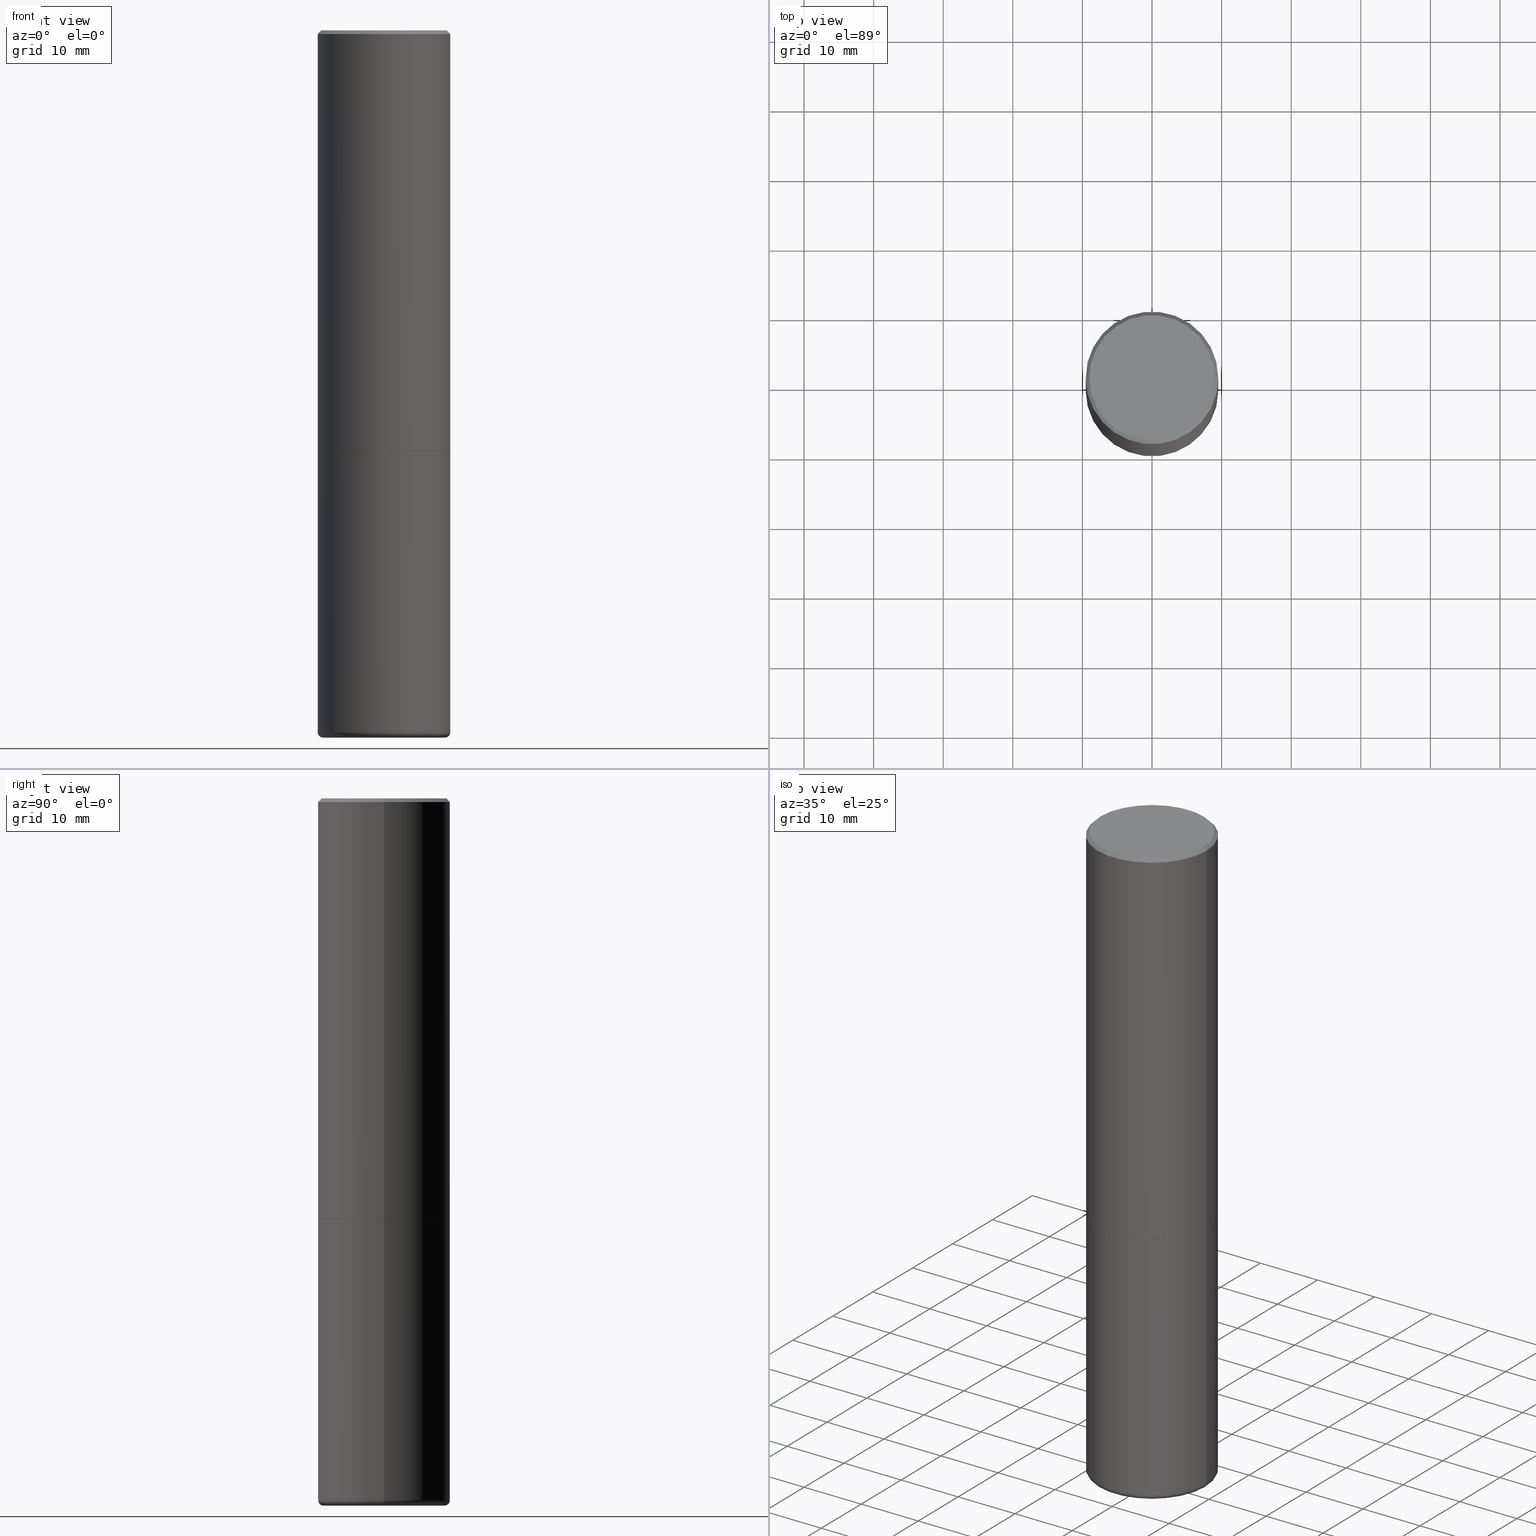
[diagram: canonical four-view strip — front | top / right | iso, engineering-drawing reading convention]
A machine part, canonical four-view strip (front | top / right | iso — engineering-drawing reading convention). The complete STEP part file that produces these views, byte-faithful:
ISO-10303-21;
HEADER;
FILE_DESCRIPTION (( 'STEP AP203' ),
    '1' );
FILE_NAME ('34308.STEP',
    '2022-11-02T20:15:25',
    ( '' ),
    ( '' ),
    'SwSTEP 2.0',
    'SolidWorks 2022',
    '' );
FILE_SCHEMA (( 'CONFIG_CONTROL_DESIGN' ));
ENDSEC;

DATA;
#1 = LINE ( 'NONE', #32, #402 ) ;
#2 = CARTESIAN_POINT ( 'NONE',  ( 9.781021626775434250E-29, -1.396470664370530441E-14, -3.999650947105539256 ) ) ;
#3 = COORDINATED_UNIVERSAL_TIME_OFFSET ( 5, 0, .BEHIND. ) ;
#4 = EDGE_LOOP ( 'NONE', ( #45, #288, #369, #331 ) ) ;
#5 = DATE_AND_TIME ( #43, #154 ) ;
#6 = CIRCLE ( 'NONE', #65, 0.3047407039350492619 ) ;
#7 = CC_DESIGN_PERSON_AND_ORGANIZATION_ASSIGNMENT ( #312, #462, ( #334 ) ) ;
#8 = CARTESIAN_POINT ( 'NONE',  ( -0.3749999999999993339, 2.548781377355482380E-15, -0.02000000000000018777 ) ) ;
#9 = APPROVAL_DATE_TIME ( #252, #461 ) ;
#10 = DIRECTION ( 'NONE',  ( -2.445468806185136597E-29, 3.491481338843145583E-15, 1.000000000000000000 ) ) ;
#11 = DIRECTION ( 'NONE',  ( -1.000000000000000000, 6.982962677686265133E-15, 0.000000000000000000 ) ) ;
#12 = CARTESIAN_POINT ( 'NONE',  ( 0.000000000000000000, 0.000000000000000000, 0.000000000000000000 ) ) ;
#13 = ORIENTED_EDGE ( 'NONE', *, *, #246, .F. ) ;
#14 = AXIS2_PLACEMENT_3D ( 'NONE', #422, #39, #49 ) ;
#15 = APPLICATION_PROTOCOL_DEFINITION ( 'international standard', 'config_control_design', 1994, #382 ) ;
#16 = DIRECTION ( 'NONE',  ( 1.000000000000000000, -6.982962677686268288E-15, 0.000000000000000000 ) ) ;
#17 = DIRECTION ( 'NONE',  ( 1.000000000000000000, -6.982962677686265133E-15, 0.000000000000000000 ) ) ;
#18 = SHAPE_DEFINITION_REPRESENTATION ( #478, #205 ) ;
#19 = CARTESIAN_POINT ( 'NONE',  ( -1.043851414335219820E-46, 1.490343170380447200E-32, 4.268512490100411279E-18 ) ) ;
#20 = CARTESIAN_POINT ( 'NONE',  ( -0.3739999999999995550, -5.629539893661476182E-15, -2.375000000000000000 ) ) ;
#21 = EDGE_CURVE ( 'NONE', #475, #142, #248, .T. ) ;
#22 = ORIENTED_EDGE ( 'NONE', *, *, #470, .F. ) ;
#23 = CIRCLE ( 'NONE', #227, 0.02999999999999947500 ) ;
#24 = ORIENTED_EDGE ( 'NONE', *, *, #294, .F. ) ;
#25 = CARTESIAN_POINT ( 'NONE',  ( 0.3749999999999995559, -1.090738770254597397E-14, -2.373999999999999666 ) ) ;
#26 = ORIENTED_EDGE ( 'NONE', *, *, #374, .F. ) ;
#27 = ORIENTED_EDGE ( 'NONE', *, *, #335, .F. ) ;
#28 = ORIENTED_EDGE ( 'NONE', *, *, #391, .F. ) ;
#29 = DATE_AND_TIME ( #290, #394 ) ;
#30 = ORIENTED_EDGE ( 'NONE', *, *, #110, .F. ) ;
#31 = LINE ( 'NONE', #121, #464 ) ;
#32 = CARTESIAN_POINT ( 'NONE',  ( -0.3749999999999993894, 2.664535259100371358E-15, -1.844600658845586515E-29 ) ) ;
#33 = EDGE_CURVE ( 'NONE', #211, #398, #271, .T. ) ;
#34 = ORIENTED_EDGE ( 'NONE', *, *, #231, .T. ) ;
#35 = VECTOR ( 'NONE', #145, 39.37007874015748143 ) ;
#36 = VECTOR ( 'NONE', #210, 39.37007874015748854 ) ;
#37 = CYLINDRICAL_SURFACE ( 'NONE', #202, 0.3749999999999993894 ) ;
#38 = LOCAL_TIME ( 16, 15, 25.00000000000000000, #204 ) ;
#39 = DIRECTION ( 'NONE',  ( -2.445468806185136597E-29, 3.491481338843145583E-15, 1.000000000000000000 ) ) ;
#40 = CARTESIAN_POINT ( 'NONE',  ( -0.3447382039350492255, -1.135653136718824702E-14, -3.999999999999999556 ) ) ;
#41 = ADVANCED_FACE ( 'NONE', ( #220 ), #193, .F. ) ;
#42 = CARTESIAN_POINT ( 'NONE',  ( 9.781875224740545266E-29, -1.396592535537258075E-14, -3.999999999999999556 ) ) ;
#43 = CALENDAR_DATE ( 2022, 2, 11 ) ;
#44 = CIRCLE ( 'NONE', #364, 0.3749999999999993339 ) ;
#45 = ORIENTED_EDGE ( 'NONE', *, *, #246, .T. ) ;
#46 = FACE_OUTER_BOUND ( 'NONE', #116, .T. ) ;
#47 = CALENDAR_DATE ( 2022, 2, 11 ) ;
#48 = EDGE_CURVE ( 'NONE', #256, #142, #184, .T. ) ;
#49 = DIRECTION ( 'NONE',  ( 1.000000000000000000, -6.982962677686268288E-15, 0.000000000000000000 ) ) ;
#50 = DATE_AND_TIME ( #47, #72 ) ;
#51 = CIRCLE ( 'NONE', #281, 0.3749999999999995559 ) ;
#52 = DIRECTION ( 'NONE',  ( 1.000000000000000000, -6.982962677686268288E-15, 0.000000000000000000 ) ) ;
#53 = CALENDAR_DATE ( 2022, 2, 11 ) ;
#54 = CARTESIAN_POINT ( 'NONE',  ( -1.043851414335219820E-46, 1.490343170380447200E-32, 4.268512490100411279E-18 ) ) ;
#55 = DIRECTION ( 'NONE',  ( 1.000000000000000000, -6.982962677686265133E-15, 0.000000000000000000 ) ) ;
#56 = PERSON_AND_ORGANIZATION ( #130, #129 ) ;
#57 = DIRECTION ( 'NONE',  ( 1.000000000000000000, -6.982962677686268288E-15, 0.000000000000000000 ) ) ;
#58 = AXIS2_PLACEMENT_3D ( 'NONE', #345, #458, #258 ) ;
#59 = ORIENTED_EDGE ( 'NONE', *, *, #335, .T. ) ;
#60 = EDGE_LOOP ( 'NONE', ( #411, #284, #179, #99 ) ) ;
#61 = CARTESIAN_POINT ( 'NONE',  ( 5.805542945883513814E-29, -8.288776698413627111E-15, -2.373999999999999666 ) ) ;
#62 = ORIENTED_EDGE ( 'NONE', *, *, #413, .F. ) ;
#63 = ORIENTED_EDGE ( 'NONE', *, *, #80, .F. ) ;
#64 = SECURITY_CLASSIFICATION_LEVEL ( 'unclassified' ) ;
#65 = AXIS2_PLACEMENT_3D ( 'NONE', #187, #465, #157 ) ;
#66 = ORIENTED_EDGE ( 'NONE', *, *, #118, .F. ) ;
#67 = APPROVAL_PERSON_ORGANIZATION ( #309, #192, #270 ) ;
#68 = DIRECTION ( 'NONE',  ( -2.445468806185136877E-29, 3.491481338843145188E-15, 1.000000000000000000 ) ) ;
#69 = VECTOR ( 'NONE', #175, 39.37007874015748143 ) ;
#70 = DIRECTION ( 'NONE',  ( -1.000000000000000000, 6.982962677686265922E-15, -4.876176775795935793E-29 ) ) ;
#71 = FACE_OUTER_BOUND ( 'NONE', #250, .T. ) ;
#72 = LOCAL_TIME ( 16, 15, 25.00000000000000000, #437 ) ;
#73 = DIRECTION ( 'NONE',  ( -2.445468806185136597E-29, 3.491481338843145583E-15, 1.000000000000000000 ) ) ;
#74 = DIRECTION ( 'NONE',  ( -2.445468806185136597E-29, 3.491481338843145583E-15, 1.000000000000000000 ) ) ;
#75 = DIRECTION ( 'NONE',  ( 1.000000000000000000, -6.982962677686268288E-15, 0.000000000000000000 ) ) ;
#76 = MANIFOLD_SOLID_BREP ( 'Body-Move/Copy2[1]', #337 ) ;
#77 = DIRECTION ( 'NONE',  ( -1.000000000000000000, 6.982962677686265133E-15, 0.000000000000000000 ) ) ;
#78 = DIRECTION ( 'NONE',  ( 1.000000000000000000, -6.982962677686265922E-15, 4.876176775795935793E-29 ) ) ;
#79 = CIRCLE ( 'NONE', #208, 0.3447382039350492255 ) ;
#80 = EDGE_CURVE ( 'NONE', #183, #215, #313, .T. ) ;
#81 = DIRECTION ( 'NONE',  ( -2.445468806185136597E-29, 3.491481338843145583E-15, 1.000000000000000000 ) ) ;
#82 = APPROVAL_PERSON_ORGANIZATION ( #471, #461, #279 ) ;
#83 = LINE ( 'NONE', #295, #316 ) ;
#84 = ORIENTED_EDGE ( 'NONE', *, *, #100, .F. ) ;
#85 = CARTESIAN_POINT ( 'NONE',  ( 0.000000000000000000, 0.000000000000000000, 0.000000000000000000 ) ) ;
#86 = CARTESIAN_POINT ( 'NONE',  ( 0.3447382039350492255, -1.633100111322433910E-14, -3.999999999999999556 ) ) ;
#87 = MECHANICAL_CONTEXT ( 'NONE', #362, 'mechanical' ) ;
#88 = FACE_OUTER_BOUND ( 'NONE', #370, .T. ) ;
#89 = EDGE_CURVE ( 'NONE', #298, #211, #31, .T. ) ;
#90 = AXIS2_PLACEMENT_3D ( 'NONE', #173, #166, #57 ) ;
#91 = CARTESIAN_POINT ( 'NONE',  ( 9.708513954033757613E-29, -1.386118490355461518E-14, -3.970001142308074993 ) ) ;
#92 = CC_DESIGN_PERSON_AND_ORGANIZATION_ASSIGNMENT ( #456, #108, ( #448 ) ) ;
#93 = APPROVAL_DATE_TIME ( #50, #338 ) ;
#94 = ORIENTED_EDGE ( 'NONE', *, *, #287, .F. ) ;
#95 = AXIS2_PLACEMENT_3D ( 'NONE', #189, #397, #267 ) ;
#96 = EDGE_CURVE ( 'NONE', #219, #398, #181, .T. ) ;
#97 = EDGE_LOOP ( 'NONE', ( #103, #336 ) ) ;
#98 = ORIENTED_EDGE ( 'NONE', *, *, #21, .F. ) ;
#99 = ORIENTED_EDGE ( 'NONE', *, *, #225, .F. ) ;
#100 = EDGE_CURVE ( 'NONE', #351, #174, #83, .T. ) ;
#101 = PLANE ( 'NONE',  #340 ) ;
#102 = COORDINATED_UNIVERSAL_TIME_OFFSET ( 5, 0, .BEHIND. ) ;
#103 = ORIENTED_EDGE ( 'NONE', *, *, #492, .T. ) ;
#104 = CARTESIAN_POINT ( 'NONE',  ( 5.807988414689699417E-29, -8.292268179752470118E-15, -2.375000000000000000 ) ) ;
#105 = AXIS2_PLACEMENT_3D ( 'NONE', #12, #350, #310 ) ;
#106 = FACE_OUTER_BOUND ( 'NONE', #480, .T. ) ;
#107 = CARTESIAN_POINT ( 'NONE',  ( 5.807988414689699417E-29, -8.292268179752470118E-15, -2.375000000000000000 ) ) ;
#108 = PERSON_AND_ORGANIZATION_ROLE ( 'creator' ) ;
#109 = CARTESIAN_POINT ( 'NONE',  ( 0.3447382039350492255, -1.637321936702362776E-14, -3.999999999999999556 ) ) ;
#110 = EDGE_CURVE ( 'NONE', #148, #445, #167, .T. ) ;
#111 = CIRCLE ( 'NONE', #436, 0.3749999999999995559 ) ;
#112 = DIRECTION ( 'NONE',  ( 1.000000000000000000, -6.982962677686267499E-15, 0.000000000000000000 ) ) ;
#113 = CC_DESIGN_APPROVAL ( #338, ( #308 ) ) ;
#114 = FACE_OUTER_BOUND ( 'NONE', #139, .T. ) ;
#115 = CARTESIAN_POINT ( 'NONE',  ( 9.754251709572808210E-29, -1.392861906220722304E-14, -3.989009167228670272 ) ) ;
#116 = EDGE_LOOP ( 'NONE', ( #27, #477, #66 ) ) ;
#117 = DIRECTION ( 'NONE',  ( -2.445468806185136597E-29, 3.491481338843145583E-15, 1.000000000000000000 ) ) ;
#118 = EDGE_CURVE ( 'NONE', #148, #183, #124, .T. ) ;
#119 = APPROVAL_STATUS ( 'not_yet_approved' ) ;
#120 = DIRECTION ( 'NONE',  ( -2.445468806185136597E-29, 3.491481338843145583E-15, 1.000000000000000000 ) ) ;
#121 = CARTESIAN_POINT ( 'NONE',  ( 0.3749999999999993894, -2.618611004132345678E-15, 1.828566290923473120E-29 ) ) ;
#122 = VERTEX_POINT ( 'NONE', #171 ) ;
#123 = DIRECTION ( 'NONE',  ( 2.445468806185136597E-29, -3.491481338843145583E-15, -1.000000000000000000 ) ) ;
#124 = CIRCLE ( 'NONE', #286, 0.3047407039350492619 ) ;
#125 = ORIENTED_EDGE ( 'NONE', *, *, #48, .T. ) ;
#126 = DIRECTION ( 'NONE',  ( 1.000000000000000000, -6.982962677686268288E-15, 0.000000000000000000 ) ) ;
#127 = APPROVAL_STATUS ( 'not_yet_approved' ) ;
#128 = DIRECTION ( 'NONE',  ( -2.445468806185136597E-29, 3.491481338843145583E-15, 1.000000000000000000 ) ) ;
#129 = ORGANIZATION ( 'UNSPECIFIED', 'UNSPECIFIED', '' ) ;
#130 = PERSON ( 'UNSPECIFIED', 'UNSPECIFIED', 'UNSPECIFIED', ('UNSPECIFIED'), ('UNSPECIFIED'), ('UNSPECIFIED') ) ;
#131 = CYLINDRICAL_SURFACE ( 'NONE', #177, 0.3749999999999995004 ) ;
#132 = EDGE_LOOP ( 'NONE', ( #34, #125 ) ) ;
#133 = EDGE_LOOP ( 'NONE', ( #172, #277, #373, #490 ) ) ;
#134 = EDGE_CURVE ( 'NONE', #445, #215, #79, .T. ) ;
#135 = DIRECTION ( 'NONE',  ( -2.445468806185136597E-29, 3.491481338843145583E-15, 1.000000000000000000 ) ) ;
#136 = ORIENTED_EDGE ( 'NONE', *, *, #391, .T. ) ;
#137 = AXIS2_PLACEMENT_3D ( 'NONE', #303, #387, #70 ) ;
#138 = AXIS2_PLACEMENT_3D ( 'NONE', #150, #451, #304 ) ;
#139 = EDGE_LOOP ( 'NONE', ( #347, #59, #26 ) ) ;
#140 = DIRECTION ( 'NONE',  ( -2.445468806185136877E-29, 3.491481338843145188E-15, 1.000000000000000000 ) ) ;
#141 = LINE ( 'NONE', #377, #357 ) ;
#142 = VERTEX_POINT ( 'NONE', #322 ) ;
#143 = DIRECTION ( 'NONE',  ( 1.000000000000000000, -6.982962677686266711E-15, 4.876176775795936353E-29 ) ) ;
#144 = VERTEX_POINT ( 'NONE', #441 ) ;
#145 = DIRECTION ( 'NONE',  ( -0.7071067811865464625, 2.468850131082245228E-15, -0.7071067811865486830 ) ) ;
#146 = FACE_OUTER_BOUND ( 'NONE', #447, .T. ) ;
#147 = CONICAL_SURFACE ( 'NONE', #444, 0.3739999999999995550, 0.7853981633974141952 ) ;
#148 = VERTEX_POINT ( 'NONE', #221 ) ;
#149 = DIRECTION ( 'NONE',  ( 1.000000000000000000, -6.982962677686265133E-15, 4.876176775795935793E-29 ) ) ;
#150 = CARTESIAN_POINT ( 'NONE',  ( 9.781875224740545266E-29, -1.396592535537258075E-14, -3.999999999999999556 ) ) ;
#151 = ORIENTED_EDGE ( 'NONE', *, *, #280, .F. ) ;
#152 = CIRCLE ( 'NONE', #185, 0.3749999999999993894 ) ;
#153 = DATE_TIME_ROLE ( 'classification_date' ) ;
#154 = LOCAL_TIME ( 16, 15, 25.00000000000000000, #355 ) ;
#155 = ADVANCED_FACE ( 'NONE', ( #224 ), #37, .T. ) ;
#156 = EDGE_LOOP ( 'NONE', ( #197, #285, #431, #291 ) ) ;
#157 = DIRECTION ( 'NONE',  ( 1.000000000000000000, -6.982962677686265133E-15, 0.000000000000000000 ) ) ;
#158 = DIRECTION ( 'NONE',  ( -1.000000000000000000, 6.982962677686267499E-15, 0.000000000000000000 ) ) ;
#159 = DIRECTION ( 'NONE',  ( 1.000000000000000000, -6.982962677686265133E-15, 0.000000000000000000 ) ) ;
#160 = AXIS2_PLACEMENT_3D ( 'NONE', #19, #81, #200 ) ;
#161 = DIRECTION ( 'NONE',  ( -1.000000000000000000, 7.105427357600985293E-15, 0.000000000000000000 ) ) ;
#162 = CONICAL_SURFACE ( 'NONE', #428, 0.3047407039350492619, 1.535889741755009030 ) ;
#163 = FACE_OUTER_BOUND ( 'NONE', #4, .T. ) ;
#164 = CARTESIAN_POINT ( 'NONE',  ( 9.781875224740545266E-29, -1.396592535537258075E-14, -3.999999999999999556 ) ) ;
#165 = DATE_TIME_ROLE ( 'creation_date' ) ;
#166 = DIRECTION ( 'NONE',  ( -2.445468806185136597E-29, 3.491481338843145583E-15, 1.000000000000000000 ) ) ;
#167 = LINE ( 'NONE', #86, #218 ) ;
#168 = CARTESIAN_POINT ( 'NONE',  ( 4.890937612370318701E-31, -6.982962677686356937E-17, -0.02000000000000018777 ) ) ;
#169 = CONICAL_SURFACE ( 'NONE', #138, 0.3447382039350492255, 1.562069680534943661 ) ;
#170 = FACE_OUTER_BOUND ( 'NONE', #156, .T. ) ;
#171 = CARTESIAN_POINT ( 'NONE',  ( -0.3749999999999993894, -8.412191282553170896E-15, -3.970001142308074993 ) ) ;
#172 = ORIENTED_EDGE ( 'NONE', *, *, #346, .T. ) ;
#173 = CARTESIAN_POINT ( 'NONE',  ( 5.807988414689699417E-29, -8.292268179752470118E-15, -2.375000000000000000 ) ) ;
#174 = VERTEX_POINT ( 'NONE', #342 ) ;
#175 = DIRECTION ( 'NONE',  ( 0.7071067811865464625, -7.319954787623252890E-15, -0.7071067811865486830 ) ) ;
#176 = EDGE_CURVE ( 'NONE', #122, #256, #487, .T. ) ;
#177 = AXIS2_PLACEMENT_3D ( 'NONE', #344, #426, #233 ) ;
#178 = AXIS2_PLACEMENT_3D ( 'NONE', #85, #73, #149 ) ;
#179 = ORIENTED_EDGE ( 'NONE', *, *, #89, .T. ) ;
#180 = EDGE_LOOP ( 'NONE', ( #84, #223, #412, #94 ) ) ;
#181 = LINE ( 'NONE', #430, #35 ) ;
#182 = DIRECTION ( 'NONE',  ( -2.445468806185136877E-29, 3.491481338843145188E-15, 1.000000000000000000 ) ) ;
#183 = VERTEX_POINT ( 'NONE', #376 ) ;
#184 = CIRCLE ( 'NONE', #190, 0.3749999999999995559 ) ;
#185 = AXIS2_PLACEMENT_3D ( 'NONE', #329, #406, #126 ) ;
#186 = EDGE_CURVE ( 'NONE', #174, #398, #1, .T. ) ;
#187 = CARTESIAN_POINT ( 'NONE',  ( 9.781021626775434250E-29, -1.396470664370530441E-14, -3.999650947105539256 ) ) ;
#188 = CIRCLE ( 'NONE', #160, 0.3549999999999992051 ) ;
#189 = CARTESIAN_POINT ( 'NONE',  ( 0.3450000000000003064, -1.627030702735637846E-14, -3.970001142308074993 ) ) ;
#190 = AXIS2_PLACEMENT_3D ( 'NONE', #393, #10, #159 ) ;
#191 = CC_DESIGN_SECURITY_CLASSIFICATION ( #403, ( #308 ) ) ;
#192 = APPROVAL ( #119, 'UNSPECIFIED' ) ;
#193 = PLANE ( 'NONE',  #383 ) ;
#194 = ORIENTED_EDGE ( 'NONE', *, *, #80, .T. ) ;
#195 = DIRECTION ( 'NONE',  ( 2.445468806185136597E-29, -3.491481338843145583E-15, -1.000000000000000000 ) ) ;
#196 = PERSON_AND_ORGANIZATION ( #130, #129 ) ;
#197 = ORIENTED_EDGE ( 'NONE', *, *, #176, .F. ) ;
#198 = DIRECTION ( 'NONE',  ( 7.105427357601001859E-15, 1.000000000000000000, -3.491481338843145583E-15 ) ) ;
#199 = DATE_AND_TIME ( #53, #468 ) ;
#200 = DIRECTION ( 'NONE',  ( 1.000000000000000000, -6.982962677686266711E-15, 4.876231632511998833E-29 ) ) ;
#201 = ORIENTED_EDGE ( 'NONE', *, *, #374, .T. ) ;
#202 = AXIS2_PLACEMENT_3D ( 'NONE', #339, #380, #143 ) ;
#203 = ADVANCED_FACE ( 'NONE', ( #146 ), #169, .F. ) ;
#204 = COORDINATED_UNIVERSAL_TIME_OFFSET ( 5, 0, .BEHIND. ) ;
#205 = ADVANCED_BREP_SHAPE_REPRESENTATION ( '34308', ( #76, #243, #105 ), #453 ) ;
#206 = LINE ( 'NONE', #242, #332 ) ;
#207 = ADVANCED_FACE ( 'NONE', ( #106 ), #260, .T. ) ;
#208 = AXIS2_PLACEMENT_3D ( 'NONE', #164, #319, #325 ) ;
#209 = ORIENTED_EDGE ( 'NONE', *, *, #134, .T. ) ;
#210 = DIRECTION ( 'NONE',  ( 0.9993908270190957621, -6.978169709227545432E-15, -0.03489949670250196839 ) ) ;
#211 = VERTEX_POINT ( 'NONE', #229 ) ;
#212 = DIRECTION ( 'NONE',  ( 1.000000000000000000, -6.982962677686265133E-15, 0.000000000000000000 ) ) ;
#213 = ORIENTED_EDGE ( 'NONE', *, *, #315, .F. ) ;
#214 = ADVANCED_FACE ( 'NONE', ( #71 ), #450, .T. ) ;
#215 = VERTEX_POINT ( 'NONE', #40 ) ;
#216 = CARTESIAN_POINT ( 'NONE',  ( -0.3549999999999992051, 2.513866563967050730E-15, 4.268512490082953109E-18 ) ) ;
#217 = DIRECTION ( 'NONE',  ( 1.000000000000000000, -6.982962677686267499E-15, 4.883557194083112901E-29 ) ) ;
#218 = VECTOR ( 'NONE', #247, 39.37007874015748854 ) ;
#219 = VERTEX_POINT ( 'NONE', #216 ) ;
#220 = FACE_OUTER_BOUND ( 'NONE', #306, .T. ) ;
#221 = CARTESIAN_POINT ( 'NONE',  ( 0.3047407039350492619, -1.605537963289119756E-14, -3.999650947105539256 ) ) ;
#222 = DIRECTION ( 'NONE',  ( -2.445468806185136597E-29, 3.491481338843145583E-15, 1.000000000000000000 ) ) ;
#223 = ORIENTED_EDGE ( 'NONE', *, *, #280, .T. ) ;
#224 = FACE_OUTER_BOUND ( 'NONE', #60, .T. ) ;
#225 = EDGE_CURVE ( 'NONE', #398, #211, #44, .T. ) ;
#226 = CARTESIAN_POINT ( 'NONE',  ( -0.3749999999999995004, 2.664535259100372147E-15, -1.844600658845587076E-29 ) ) ;
#227 = AXIS2_PLACEMENT_3D ( 'NONE', #419, #198, #161 ) ;
#228 = FACE_OUTER_BOUND ( 'NONE', #283, .T. ) ;
#229 = CARTESIAN_POINT ( 'NONE',  ( 0.3749999999999993339, -2.642516375941183295E-15, -0.02000000000000018777 ) ) ;
#230 = DIRECTION ( 'NONE',  ( 1.000000000000000000, -6.982962677686266711E-15, 4.876176775795936353E-29 ) ) ;
#231 = EDGE_CURVE ( 'NONE', #142, #256, #51, .T. ) ;
#232 = ORIENTED_EDGE ( 'NONE', *, *, #315, .T. ) ;
#233 = DIRECTION ( 'NONE',  ( 1.000000000000000000, -6.982962677686265133E-15, 4.876176775795935793E-29 ) ) ;
#234 = CC_DESIGN_PERSON_AND_ORGANIZATION_ASSIGNMENT ( #196, #255, ( #308 ) ) ;
#235 = CIRCLE ( 'NONE', #95, 0.02999999999999947500 ) ;
#236 = AXIS2_PLACEMENT_3D ( 'NONE', #415, #222, #217 ) ;
#237 = LENGTH_MEASURE_WITH_UNIT ( LENGTH_MEASURE( 0.02539999999999999897 ), #392 );
#238 = AXIS2_PLACEMENT_3D ( 'NONE', #42, #435, #434 ) ;
#239 = EDGE_CURVE ( 'NONE', #144, #211, #417, .T. ) ;
#240 = FACE_OUTER_BOUND ( 'NONE', #180, .T. ) ;
#241 = CONICAL_SURFACE ( 'NONE', #90, 0.3739999999999995550, 0.7853981633974141952 ) ;
#242 = CARTESIAN_POINT ( 'NONE',  ( -0.3047407039350492619, -1.183671368175501508E-14, -3.999650947105539256 ) ) ;
#243 = MANIFOLD_SOLID_BREP ( 'Body-Move/Copy2[2]', #323 ) ;
#244 = PERSON_AND_ORGANIZATION ( #130, #129 ) ;
#245 = AXIS2_PLACEMENT_3D ( 'NONE', #425, #272, #158 ) ;
#246 = EDGE_CURVE ( 'NONE', #442, #351, #305, .T. ) ;
#247 = DIRECTION ( 'NONE',  ( 0.9999619230641714207, -6.890705306874777996E-15, -0.008726535498355246501 ) ) ;
#248 = LINE ( 'NONE', #476, #489 ) ;
#249 = DIRECTION ( 'NONE',  ( -1.000000000000000000, 6.982962677686265922E-15, -4.876176775795935793E-29 ) ) ;
#250 = EDGE_LOOP ( 'NONE', ( #209, #264, #213, #28 ) ) ;
#251 = DIRECTION ( 'NONE',  ( 2.438088387897960049E-29, -3.491481338843145188E-15, -1.000000000000000000 ) ) ;
#252 = DATE_AND_TIME ( #474, #38 ) ;
#253 = EDGE_LOOP ( 'NONE', ( #232, #333, #486, #98 ) ) ;
#254 = CARTESIAN_POINT ( 'NONE',  ( 0.3749999999999993339, -2.642516375941183295E-15, -0.02000000000000018777 ) ) ;
#255 = PERSON_AND_ORGANIZATION_ROLE ( 'design_supplier' ) ;
#256 = VERTEX_POINT ( 'NONE', #292 ) ;
#257 = ORIENTED_EDGE ( 'NONE', *, *, #418, .T. ) ;
#258 = DIRECTION ( 'NONE',  ( 1.000000000000000000, -6.982962677686267499E-15, 4.883557194083112901E-29 ) ) ;
#259 = ORIENTED_EDGE ( 'NONE', *, *, #134, .F. ) ;
#260 = CONICAL_SURFACE ( 'NONE', #265, 0.3749999999999993339, 0.7853981633974467247 ) ;
#261 = PRODUCT_RELATED_PRODUCT_CATEGORY ( 'detail', '', ( #334 ) ) ;
#262 = ADVANCED_FACE ( 'NONE', ( #488 ), #421, .T. ) ;
#263 = DIRECTION ( 'NONE',  ( -2.445468806185136597E-29, 3.491481338843145583E-15, 1.000000000000000000 ) ) ;
#264 = ORIENTED_EDGE ( 'NONE', *, *, #413, .T. ) ;
#265 = AXIS2_PLACEMENT_3D ( 'NONE', #485, #300, #420 ) ;
#266 = EDGE_CURVE ( 'NONE', #442, #298, #141, .T. ) ;
#267 = DIRECTION ( 'NONE',  ( 1.000000000000000000, -6.982962677686260400E-15, 0.000000000000000000 ) ) ;
#268 = DIRECTION ( 'NONE',  ( 1.000000000000000000, -6.982962677686267499E-15, 0.000000000000000000 ) ) ;
#269 = CC_DESIGN_PERSON_AND_ORGANIZATION_ASSIGNMENT ( #244, #405, ( #308 ) ) ;
#270 = APPROVAL_ROLE ( '' ) ;
#271 = CIRCLE ( 'NONE', #414, 0.3749999999999993339 ) ;
#272 = DIRECTION ( 'NONE',  ( 2.445468806185136597E-29, -3.491481338843145583E-15, -1.000000000000000000 ) ) ;
#273 = AXIS2_PLACEMENT_3D ( 'NONE', #107, #263, #75 ) ;
#274 = DIRECTION ( 'NONE',  ( -2.445468806185136877E-29, 3.491481338843145188E-15, 1.000000000000000000 ) ) ;
#275 = CYLINDRICAL_SURFACE ( 'NONE', #178, 0.3749999999999995004 ) ;
#276 = ADVANCED_FACE ( 'NONE', ( #289 ), #101, .F. ) ;
#277 = ORIENTED_EDGE ( 'NONE', *, *, #186, .T. ) ;
#278 = DIRECTION ( 'NONE',  ( -0.9993908270190957621, 6.856857904024552526E-15, -0.03489949670250196839 ) ) ;
#279 = APPROVAL_ROLE ( '' ) ;
#280 = EDGE_CURVE ( 'NONE', #351, #442, #372, .T. ) ;
#281 = AXIS2_PLACEMENT_3D ( 'NONE', #423, #483, #297 ) ;
#282 = CC_DESIGN_DATE_AND_TIME_ASSIGNMENT ( #5, #153, ( #403 ) ) ;
#283 = EDGE_LOOP ( 'NONE', ( #201, #390, #449, #63 ) ) ;
#284 = ORIENTED_EDGE ( 'NONE', *, *, #287, .T. ) ;
#285 = ORIENTED_EDGE ( 'NONE', *, *, #294, .T. ) ;
#286 = AXIS2_PLACEMENT_3D ( 'NONE', #363, #358, #17 ) ;
#287 = EDGE_CURVE ( 'NONE', #174, #298, #408, .T. ) ;
#288 = ORIENTED_EDGE ( 'NONE', *, *, #100, .T. ) ;
#289 = FACE_OUTER_BOUND ( 'NONE', #132, .T. ) ;
#290 = CALENDAR_DATE ( 2022, 2, 11 ) ;
#291 = ORIENTED_EDGE ( 'NONE', *, *, #48, .F. ) ;
#292 = CARTESIAN_POINT ( 'NONE',  ( -0.3749999999999995559, -8.412191282553170896E-15, -2.375000000000000000 ) ) ;
#293 = ORIENTED_EDGE ( 'NONE', *, *, #118, .T. ) ;
#294 = EDGE_CURVE ( 'NONE', #122, #475, #348, .T. ) ;
#295 = CARTESIAN_POINT ( 'NONE',  ( -0.3739999999999995550, -5.634838348009698584E-15, -2.375000000000000000 ) ) ;
#296 = AXIS2_PLACEMENT_3D ( 'NONE', #2, #123, #11 ) ;
#297 = DIRECTION ( 'NONE',  ( 1.000000000000000000, -6.982962677686265133E-15, 0.000000000000000000 ) ) ;
#298 = VERTEX_POINT ( 'NONE', #25 ) ;
#299 = PLANE ( 'NONE',  #137 ) ;
#300 = DIRECTION ( 'NONE',  ( 2.445468806185136597E-29, -3.491481338843145583E-15, -1.000000000000000000 ) ) ;
#301 = ADVANCED_FACE ( 'NONE', ( #163 ), #241, .T. ) ;
#302 = ORIENTED_EDGE ( 'NONE', *, *, #225, .T. ) ;
#303 = CARTESIAN_POINT ( 'NONE',  ( 2.478951750578619081E-15, 0.3549999999999992051, -1.237341619044263666E-15 ) ) ;
#304 = DIRECTION ( 'NONE',  ( -1.000000000000000000, 6.982962677686268288E-15, 0.000000000000000000 ) ) ;
#305 = CIRCLE ( 'NONE', #273, 0.3739999999999995550 ) ;
#306 = EDGE_LOOP ( 'NONE', ( #13, #151 ) ) ;
#307 = CARTESIAN_POINT ( 'NONE',  ( 9.781021626775434250E-29, -1.396470664370530441E-14, -3.999650947105539256 ) ) ;
#308 = PRODUCT_DEFINITION_FORMATION_WITH_SPECIFIED_SOURCE ( 'ANY', '', #334, .NOT_KNOWN. ) ;
#309 = PERSON_AND_ORGANIZATION ( #130, #129 ) ;
#310 = DIRECTION ( 'NONE',  ( 1.000000000000000000, 0.000000000000000000, 0.000000000000000000 ) ) ;
#311 = AXIS2_PLACEMENT_3D ( 'NONE', #54, #120, #429 ) ;
#312 = PERSON_AND_ORGANIZATION ( #130, #129 ) ;
#313 = LINE ( 'NONE', #463, #473 ) ;
#314 = FACE_OUTER_BOUND ( 'NONE', #253, .T. ) ;
#315 = EDGE_CURVE ( 'NONE', #475, #122, #152, .T. ) ;
#316 = VECTOR ( 'NONE', #433, 39.37007874015748854 ) ;
#317 = AXIS2_PLACEMENT_3D ( 'NONE', #353, #117, #230 ) ;
#318 = APPROVAL_PERSON_ORGANIZATION ( #56, #338, #427 ) ;
#319 = DIRECTION ( 'NONE',  ( -2.445468806185136597E-29, 3.491481338843145583E-15, 1.000000000000000000 ) ) ;
#320 = LINE ( 'NONE', #361, #36 ) ;
#321 = EDGE_CURVE ( 'NONE', #482, #183, #206, .T. ) ;
#322 = CARTESIAN_POINT ( 'NONE',  ( 0.3749999999999995559, -1.091087918388481698E-14, -2.375000000000000000 ) ) ;
#323 = CLOSED_SHELL ( 'NONE', ( #301, #385, #207, #460, #155, #328, #41, #439 ) ) ;
#324 = AXIS2_PLACEMENT_3D ( 'NONE', #91, #368, #440 ) ;
#325 = DIRECTION ( 'NONE',  ( 1.000000000000000000, -6.982962677686268288E-15, 0.000000000000000000 ) ) ;
#326 = CIRCLE ( 'NONE', #311, 0.3549999999999992051 ) ;
#327 = ORIENTED_EDGE ( 'NONE', *, *, #239, .T. ) ;
#328 = ADVANCED_FACE ( 'NONE', ( #240 ), #147, .T. ) ;
#329 = CARTESIAN_POINT ( 'NONE',  ( 9.708513954033757613E-29, -1.386118490355461518E-14, -3.970001142308074993 ) ) ;
#330 = DESIGN_CONTEXT ( 'detailed design', #382, 'design' ) ;
#331 = ORIENTED_EDGE ( 'NONE', *, *, #266, .F. ) ;
#332 = VECTOR ( 'NONE', #278, 39.37007874015748854 ) ;
#333 = ORIENTED_EDGE ( 'NONE', *, *, #176, .T. ) ;
#334 = PRODUCT ( '34308', '34308', '', ( #87 ) ) ;
#335 = EDGE_CURVE ( 'NONE', #482, #148, #320, .T. ) ;
#336 = ORIENTED_EDGE ( 'NONE', *, *, #470, .T. ) ;
#337 = CLOSED_SHELL ( 'NONE', ( #454, #214, #424, #399, #407, #276, #352, #262, #203 ) ) ;
#338 = APPROVAL ( #400, 'UNSPECIFIED' ) ;
#339 = CARTESIAN_POINT ( 'NONE',  ( 0.000000000000000000, 0.000000000000000000, 0.000000000000000000 ) ) ;
#340 = AXIS2_PLACEMENT_3D ( 'NONE', #452, #251, #249 ) ;
#341 = UNCERTAINTY_MEASURE_WITH_UNIT (LENGTH_MEASURE( 1.000000000000000082E-05 ), #396, 'distance_accuracy_value', 'NONE');
#342 = CARTESIAN_POINT ( 'NONE',  ( -0.3749999999999995559, -1.514767903494871085E-15, -2.373999999999999666 ) ) ;
#343 =( NAMED_UNIT ( * ) SI_UNIT ( $, .STERADIAN. ) SOLID_ANGLE_UNIT ( ) );
#344 = CARTESIAN_POINT ( 'NONE',  ( 0.000000000000000000, 0.000000000000000000, 0.000000000000000000 ) ) ;
#345 = CARTESIAN_POINT ( 'NONE',  ( 9.708513954033757613E-29, -1.386118490355461518E-14, -3.970001142308074993 ) ) ;
#346 = EDGE_CURVE ( 'NONE', #298, #174, #111, .T. ) ;
#347 = ORIENTED_EDGE ( 'NONE', *, *, #321, .F. ) ;
#348 = CIRCLE ( 'NONE', #324, 0.3749999999999993894 ) ;
#349 = CC_DESIGN_APPROVAL ( #192, ( #403 ) ) ;
#350 = DIRECTION ( 'NONE',  ( 0.000000000000000000, 0.000000000000000000, 1.000000000000000000 ) ) ;
#351 = VERTEX_POINT ( 'NONE', #20 ) ;
#352 = ADVANCED_FACE ( 'NONE', ( #170 ), #131, .T. ) ;
#353 = CARTESIAN_POINT ( 'NONE',  ( 0.000000000000000000, 0.000000000000000000, 0.000000000000000000 ) ) ;
#354 = ORIENTED_EDGE ( 'NONE', *, *, #96, .F. ) ;
#355 = COORDINATED_UNIVERSAL_TIME_OFFSET ( 5, 0, .BEHIND. ) ;
#356 = FACE_OUTER_BOUND ( 'NONE', #97, .T. ) ;
#357 = VECTOR ( 'NONE', #381, 39.37007874015748854 ) ;
#358 = DIRECTION ( 'NONE',  ( -2.445468806185136597E-29, 3.491481338843145583E-15, 1.000000000000000000 ) ) ;
#359 = CARTESIAN_POINT ( 'NONE',  ( 0.3749999999999993894, -1.647979590768696204E-14, -3.970001142308074993 ) ) ;
#360 = CC_DESIGN_DATE_AND_TIME_ASSIGNMENT ( #199, #165, ( #448 ) ) ;
#361 = CARTESIAN_POINT ( 'NONE',  ( 0.3047407039350492619, -1.605537963289119756E-14, -3.999650947105539256 ) ) ;
#362 = APPLICATION_CONTEXT ( 'configuration controlled 3d designs of mechanical parts and assemblies' ) ;
#363 = CARTESIAN_POINT ( 'NONE',  ( 9.781021626775434250E-29, -1.396470664370530441E-14, -3.999650947105539256 ) ) ;
#364 = AXIS2_PLACEMENT_3D ( 'NONE', #388, #74, #112 ) ;
#365 = DIRECTION ( 'NONE',  ( -2.445468806185136597E-29, 3.491481338843145583E-15, 1.000000000000000000 ) ) ;
#366 = DIRECTION ( 'NONE',  ( -2.445468806185136597E-29, 3.491481338843145583E-15, 1.000000000000000000 ) ) ;
#367 = ORIENTED_EDGE ( 'NONE', *, *, #492, .F. ) ;
#368 = DIRECTION ( 'NONE',  ( -2.445468806185136597E-29, 3.491481338843145583E-15, 1.000000000000000000 ) ) ;
#369 = ORIENTED_EDGE ( 'NONE', *, *, #346, .F. ) ;
#370 = EDGE_LOOP ( 'NONE', ( #379, #367, #416, #302 ) ) ;
#371 = PERSON_AND_ORGANIZATION ( #130, #129 ) ;
#372 = CIRCLE ( 'NONE', #384, 0.3739999999999995550 ) ;
#373 = ORIENTED_EDGE ( 'NONE', *, *, #33, .F. ) ;
#374 = EDGE_CURVE ( 'NONE', #183, #148, #6, .T. ) ;
#375 = DIRECTION ( 'NONE',  ( -0.9999619230641714207, 6.952228252019235511E-15, -0.008726535498355246501 ) ) ;
#376 = CARTESIAN_POINT ( 'NONE',  ( -0.3047407039350492619, -1.183671368175501508E-14, -3.999650947105539256 ) ) ;
#377 = CARTESIAN_POINT ( 'NONE',  ( 0.3739999999999995550, -1.090389622120713096E-14, -2.375000000000000000 ) ) ;
#378 = CC_DESIGN_PERSON_AND_ORGANIZATION_ASSIGNMENT ( #371, #484, ( #403 ) ) ;
#379 = ORIENTED_EDGE ( 'NONE', *, *, #239, .F. ) ;
#380 = DIRECTION ( 'NONE',  ( -2.445468806185136597E-29, 3.491481338843145583E-15, 1.000000000000000000 ) ) ;
#381 = DIRECTION ( 'NONE',  ( 0.7071067811865232589, -2.468850131082003836E-15, 0.7071067811865715536 ) ) ;
#382 = APPLICATION_CONTEXT ( 'configuration controlled 3d designs of mechanical parts and assemblies' ) ;
#383 = AXIS2_PLACEMENT_3D ( 'NONE', #104, #389, #78 ) ;
#384 = AXIS2_PLACEMENT_3D ( 'NONE', #472, #410, #16 ) ;
#385 = ADVANCED_FACE ( 'NONE', ( #395 ), #457, .T. ) ;
#386 = CONICAL_SURFACE ( 'NONE', #245, 0.3749999999999993339, 0.7853981633974467247 ) ;
#387 = DIRECTION ( 'NONE',  ( 2.438088387897960049E-29, -3.491481338843145188E-15, -1.000000000000000000 ) ) ;
#388 = CARTESIAN_POINT ( 'NONE',  ( 4.890937612370318701E-31, -6.982962677686356937E-17, -0.02000000000000018777 ) ) ;
#389 = DIRECTION ( 'NONE',  ( -2.438088387897960049E-29, 3.491481338843145188E-15, 1.000000000000000000 ) ) ;
#390 = ORIENTED_EDGE ( 'NONE', *, *, #110, .T. ) ;
#391 = EDGE_CURVE ( 'NONE', #445, #475, #235, .T. ) ;
#392 =( LENGTH_UNIT ( ) NAMED_UNIT ( * ) SI_UNIT ( $, .METRE. ) );
#393 = CARTESIAN_POINT ( 'NONE',  ( 5.807988414689699417E-29, -8.292268179752470118E-15, -2.375000000000000000 ) ) ;
#394 = LOCAL_TIME ( 16, 15, 25.00000000000000000, #102 ) ;
#395 = FACE_OUTER_BOUND ( 'NONE', #133, .T. ) ;
#396 =( CONVERSION_BASED_UNIT ( 'INCH', #237 ) LENGTH_UNIT ( ) NAMED_UNIT ( #443 ) );
#397 = DIRECTION ( 'NONE',  ( -6.982962677686266711E-15, -1.000000000000000000, 3.491481338843145583E-15 ) ) ;
#398 = VERTEX_POINT ( 'NONE', #8 ) ;
#399 = ADVANCED_FACE ( 'NONE', ( #114 ), #459, .F. ) ;
#400 = APPROVAL_STATUS ( 'not_yet_approved' ) ;
#401 = CARTESIAN_POINT ( 'NONE',  ( 5.807988414689699417E-29, -8.292268179752470118E-15, -2.375000000000000000 ) ) ;
#402 = VECTOR ( 'NONE', #182, 39.37007874015748143 ) ;
#403 = SECURITY_CLASSIFICATION ( '', '', #64 ) ;
#404 = CARTESIAN_POINT ( 'NONE',  ( 5.805542945883513814E-29, -8.288776698413627111E-15, -2.373999999999999666 ) ) ;
#405 = PERSON_AND_ORGANIZATION_ROLE ( 'creator' ) ;
#406 = DIRECTION ( 'NONE',  ( -2.445468806185136597E-29, 3.491481338843145583E-15, 1.000000000000000000 ) ) ;
#407 = ADVANCED_FACE ( 'NONE', ( #46 ), #162, .F. ) ;
#408 = CIRCLE ( 'NONE', #466, 0.3749999999999995559 ) ;
#409 = EDGE_LOOP ( 'NONE', ( #62, #257, #136, #24 ) ) ;
#410 = DIRECTION ( 'NONE',  ( -2.445468806185136597E-29, 3.491481338843145583E-15, 1.000000000000000000 ) ) ;
#411 = ORIENTED_EDGE ( 'NONE', *, *, #186, .F. ) ;
#412 = ORIENTED_EDGE ( 'NONE', *, *, #266, .T. ) ;
#413 = EDGE_CURVE ( 'NONE', #215, #122, #23, .T. ) ;
#414 = AXIS2_PLACEMENT_3D ( 'NONE', #168, #365, #268 ) ;
#415 = CARTESIAN_POINT ( 'NONE',  ( 9.708513954033757613E-29, -1.386118490355461518E-14, -3.970001142308074993 ) ) ;
#416 = ORIENTED_EDGE ( 'NONE', *, *, #96, .T. ) ;
#417 = LINE ( 'NONE', #254, #69 ) ;
#418 = EDGE_CURVE ( 'NONE', #215, #445, #491, .T. ) ;
#419 = CARTESIAN_POINT ( 'NONE',  ( -0.3450000000000003064, -1.140981246518226815E-14, -3.970001142308074993 ) ) ;
#420 = DIRECTION ( 'NONE',  ( -1.000000000000000000, 6.982962677686267499E-15, 0.000000000000000000 ) ) ;
#421 = TOROIDAL_SURFACE ( 'NONE', #236, 0.3450000000000003064, 0.02999999999999946806 ) ;
#422 = CARTESIAN_POINT ( 'NONE',  ( 9.781875224740545266E-29, -1.396592535537258075E-14, -3.999999999999999556 ) ) ;
#423 = CARTESIAN_POINT ( 'NONE',  ( 5.807988414689699417E-29, -8.292268179752470118E-15, -2.375000000000000000 ) ) ;
#424 = ADVANCED_FACE ( 'NONE', ( #314 ), #275, .T. ) ;
#425 = CARTESIAN_POINT ( 'NONE',  ( 4.890937612370318701E-31, -6.982962677686356937E-17, -0.02000000000000018777 ) ) ;
#426 = DIRECTION ( 'NONE',  ( -2.445468806185136597E-29, 3.491481338843145583E-15, 1.000000000000000000 ) ) ;
#427 = APPROVAL_ROLE ( '' ) ;
#428 = AXIS2_PLACEMENT_3D ( 'NONE', #307, #195, #77 ) ;
#429 = DIRECTION ( 'NONE',  ( 1.000000000000000000, -6.982962677686266711E-15, 4.876231632511998833E-29 ) ) ;
#430 = CARTESIAN_POINT ( 'NONE',  ( -0.3749999999999993339, 2.548781377355482380E-15, -0.02000000000000018777 ) ) ;
#431 = ORIENTED_EDGE ( 'NONE', *, *, #21, .T. ) ;
#432 = CC_DESIGN_APPROVAL ( #461, ( #448 ) ) ;
#433 = DIRECTION ( 'NONE',  ( -0.7071067811865232589, 7.493145998870265808E-15, 0.7071067811865715536 ) ) ;
#434 = DIRECTION ( 'NONE',  ( -1.000000000000000000, 6.982962677686268288E-15, 0.000000000000000000 ) ) ;
#435 = DIRECTION ( 'NONE',  ( 2.445468806185136597E-29, -3.491481338843145583E-15, -1.000000000000000000 ) ) ;
#436 = AXIS2_PLACEMENT_3D ( 'NONE', #404, #128, #55 ) ;
#437 = COORDINATED_UNIVERSAL_TIME_OFFSET ( 5, 0, .BEHIND. ) ;
#438 = ORIENTED_EDGE ( 'NONE', *, *, #33, .T. ) ;
#439 = ADVANCED_FACE ( 'NONE', ( #356 ), #299, .F. ) ;
#440 = DIRECTION ( 'NONE',  ( 1.000000000000000000, -6.982962677686268288E-15, 0.000000000000000000 ) ) ;
#441 = CARTESIAN_POINT ( 'NONE',  ( 0.3549999999999992051, -2.538996582575035920E-15, 4.268512490117958041E-18 ) ) ;
#442 = VERTEX_POINT ( 'NONE', #455 ) ;
#443 = DIMENSIONAL_EXPONENTS ( 1.000000000000000000, 0.000000000000000000, 0.000000000000000000, 0.000000000000000000, 0.000000000000000000, 0.000000000000000000, 0.000000000000000000 ) ;
#444 = AXIS2_PLACEMENT_3D ( 'NONE', #401, #366, #52 ) ;
#445 = VERTEX_POINT ( 'NONE', #109 ) ;
#446 = APPROVAL_DATE_TIME ( #29, #192 ) ;
#447 = EDGE_LOOP ( 'NONE', ( #30, #293, #194, #259 ) ) ;
#448 = PRODUCT_DEFINITION ( 'UNKNOWN', '', #308, #330 ) ;
#449 = ORIENTED_EDGE ( 'NONE', *, *, #418, .F. ) ;
#450 = TOROIDAL_SURFACE ( 'NONE', #58, 0.3450000000000003064, 0.02999999999999946806 ) ;
#451 = DIRECTION ( 'NONE',  ( 2.445468806185136597E-29, -3.491481338843145583E-15, -1.000000000000000000 ) ) ;
#452 = CARTESIAN_POINT ( 'NONE',  ( 2.618611004132404842E-15, 0.3749999999999912847, -2.375000000000001332 ) ) ;
#453 =( GEOMETRIC_REPRESENTATION_CONTEXT ( 3 ) GLOBAL_UNCERTAINTY_ASSIGNED_CONTEXT ( ( #341 ) ) GLOBAL_UNIT_ASSIGNED_CONTEXT ( ( #396, #467, #343 ) ) REPRESENTATION_CONTEXT ( 'NONE', 'WORKASPACE' ) );
#454 = ADVANCED_FACE ( 'NONE', ( #228 ), #481, .F. ) ;
#455 = CARTESIAN_POINT ( 'NONE',  ( 0.3739999999999995550, -1.090389622120713096E-14, -2.375000000000000000 ) ) ;
#456 = PERSON_AND_ORGANIZATION ( #130, #129 ) ;
#457 = CYLINDRICAL_SURFACE ( 'NONE', #317, 0.3749999999999993894 ) ;
#458 = DIRECTION ( 'NONE',  ( -2.445468806185136597E-29, 3.491481338843145583E-15, 1.000000000000000000 ) ) ;
#459 = CONICAL_SURFACE ( 'NONE', #296, 0.3047407039350492619, 1.535889741755009030 ) ;
#460 = ADVANCED_FACE ( 'NONE', ( #88 ), #386, .T. ) ;
#461 = APPROVAL ( #127, 'UNSPECIFIED' ) ;
#462 = PERSON_AND_ORGANIZATION_ROLE ( 'design_owner' ) ;
#463 = CARTESIAN_POINT ( 'NONE',  ( -0.3447382039350492255, -1.155863134372153375E-14, -3.999999999999999556 ) ) ;
#464 = VECTOR ( 'NONE', #274, 39.37007874015748143 ) ;
#465 = DIRECTION ( 'NONE',  ( -2.445468806185136597E-29, 3.491481338843145583E-15, 1.000000000000000000 ) ) ;
#466 = AXIS2_PLACEMENT_3D ( 'NONE', #61, #135, #212 ) ;
#467 =( NAMED_UNIT ( * ) PLANE_ANGLE_UNIT ( ) SI_UNIT ( $, .RADIAN. ) );
#468 = LOCAL_TIME ( 16, 15, 25.00000000000000000, #3 ) ;
#469 = APPLICATION_PROTOCOL_DEFINITION ( 'international standard', 'config_control_design', 1994, #362 ) ;
#470 = EDGE_CURVE ( 'NONE', #144, #219, #326, .T. ) ;
#471 = PERSON_AND_ORGANIZATION ( #130, #129 ) ;
#472 = CARTESIAN_POINT ( 'NONE',  ( 5.807988414689699417E-29, -8.292268179752470118E-15, -2.375000000000000000 ) ) ;
#473 = VECTOR ( 'NONE', #375, 39.37007874015748854 ) ;
#474 = CALENDAR_DATE ( 2022, 2, 11 ) ;
#475 = VERTEX_POINT ( 'NONE', #359 ) ;
#476 = CARTESIAN_POINT ( 'NONE',  ( 0.3749999999999995004, -2.618611004132346072E-15, 1.828566290923473400E-29 ) ) ;
#477 = ORIENTED_EDGE ( 'NONE', *, *, #321, .T. ) ;
#478 = PRODUCT_DEFINITION_SHAPE ( 'NONE', 'NONE',  #448 ) ;
#479 = VECTOR ( 'NONE', #68, 39.37007874015748143 ) ;
#480 = EDGE_LOOP ( 'NONE', ( #22, #327, #438, #354 ) ) ;
#481 = CONICAL_SURFACE ( 'NONE', #238, 0.3447382039350492255, 1.562069680534943661 ) ;
#482 = VERTEX_POINT ( 'NONE', #115 ) ;
#483 = DIRECTION ( 'NONE',  ( -2.445468806185136597E-29, 3.491481338843145583E-15, 1.000000000000000000 ) ) ;
#484 = PERSON_AND_ORGANIZATION_ROLE ( 'classification_officer' ) ;
#485 = CARTESIAN_POINT ( 'NONE',  ( 4.890937612370318701E-31, -6.982962677686356937E-17, -0.02000000000000018777 ) ) ;
#486 = ORIENTED_EDGE ( 'NONE', *, *, #231, .F. ) ;
#487 = LINE ( 'NONE', #226, #479 ) ;
#488 = FACE_OUTER_BOUND ( 'NONE', #409, .T. ) ;
#489 = VECTOR ( 'NONE', #140, 39.37007874015748143 ) ;
#490 = ORIENTED_EDGE ( 'NONE', *, *, #89, .F. ) ;
#491 = CIRCLE ( 'NONE', #14, 0.3447382039350492255 ) ;
#492 = EDGE_CURVE ( 'NONE', #219, #144, #188, .T. ) ;
ENDSEC;
END-ISO-10303-21;
